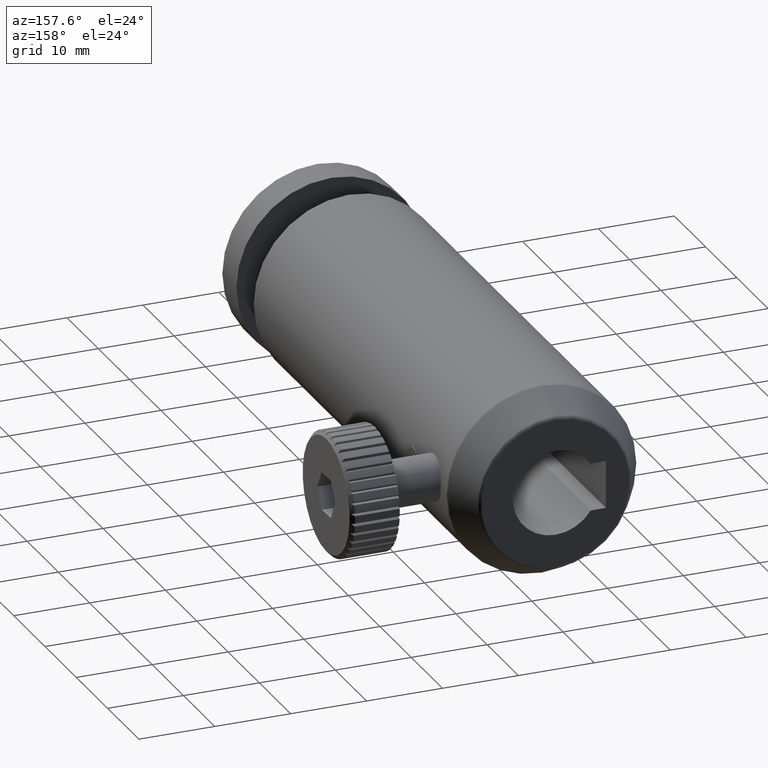
[diagram: clean part render]
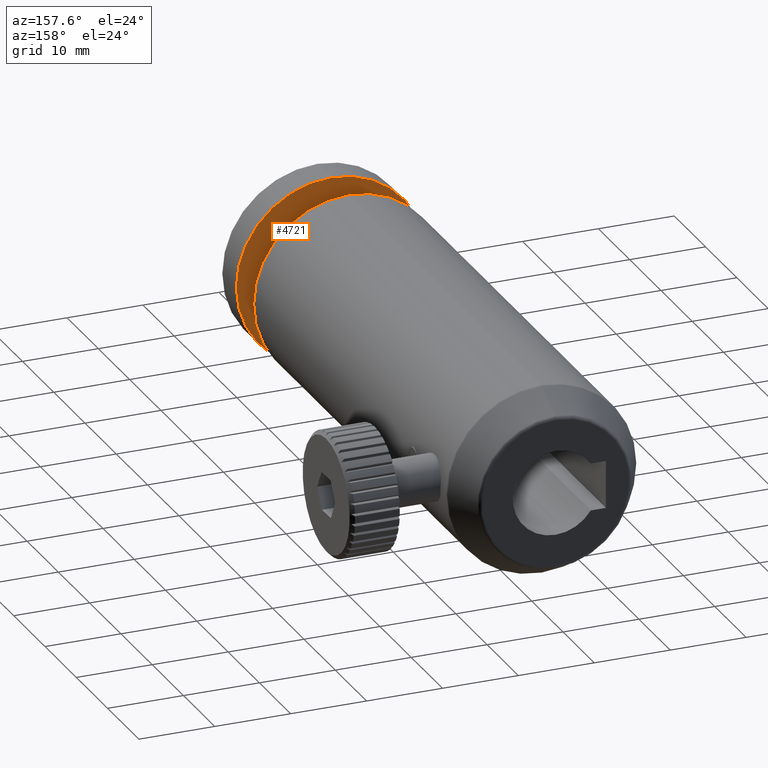
[diagram: same view with one face highlighted and labeled with its STEP entity id]
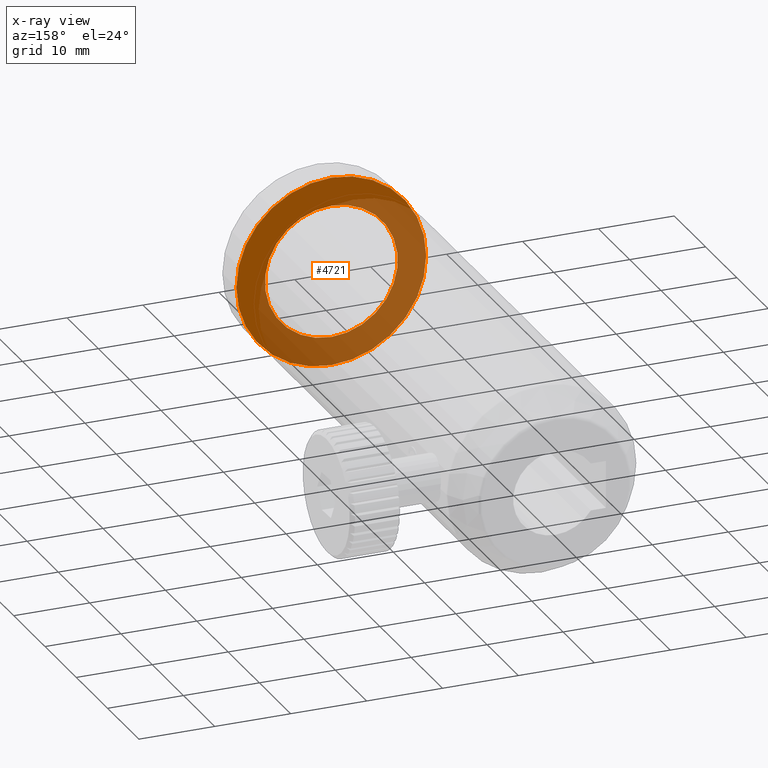
[diagram: x-ray of the same camera — body ghosted, the highlighted face saturated]
A machine part, auxiliary view. The second image highlights one B-rep face of the part: STEP entity #4721.
The next image is the same camera in x-ray: the body ghosted, the highlighted face saturated — about 58% of this face is hidden behind the body in this view.
In plain terms, the highlighted planar face has unit normal (0, -1, -0).
Its self-contained STEP definition (entity closure, byte-faithful):
#176 = ORIENTED_EDGE ( 'NONE', *, *, #4121, .F. ) ;
#234 = ORIENTED_EDGE ( 'NONE', *, *, #2832, .T. ) ;
#694 = EDGE_LOOP ( 'NONE', ( #234, #3707 ) ) ;
#946 = CIRCLE ( 'NONE', #4308, 8.750000000000000000 ) ;
#998 = DIRECTION ( 'NONE',  ( -0.0000000000000000000, -1.000000000000000000, -0.0000000000000000000 ) ) ;
#1065 = AXIS2_PLACEMENT_3D ( 'NONE', #3477, #1856, #3891 ) ;
#1077 = PLANE ( 'NONE',  #2325 ) ;
#1243 = DIRECTION ( 'NONE',  ( 0.0000000000000000000, 0.0000000000000000000, -1.000000000000000000 ) ) ;
#1294 = CARTESIAN_POINT ( 'NONE',  ( -3.194185020997174700, -11.81361205960984000, 0.0000000000000000000 ) ) ;
#1412 = DIRECTION ( 'NONE',  ( 0.0000000000000000000, -1.000000000000000000, -0.0000000000000000000 ) ) ;
#1486 = CARTESIAN_POINT ( 'NONE',  ( -3.194185020997174700, -11.81361205960984000, -12.50000000000000000 ) ) ;
#1509 = CARTESIAN_POINT ( 'NONE',  ( -3.194185020997174700, -11.81361205960984500, -8.750000000000000000 ) ) ;
#1615 = VERTEX_POINT ( 'NONE', #4999 ) ;
#1708 = DIRECTION ( 'NONE',  ( 0.0000000000000000000, 0.0000000000000000000, -1.000000000000000000 ) ) ;
#1718 = CIRCLE ( 'NONE', #4277, 12.50000000000000000 ) ;
#1805 = VERTEX_POINT ( 'NONE', #1486 ) ;
#1856 = DIRECTION ( 'NONE',  ( -0.0000000000000000000, -1.000000000000000000, -0.0000000000000000000 ) ) ;
#1884 = DIRECTION ( 'NONE',  ( 0.0000000000000000000, 0.0000000000000000000, -1.000000000000000000 ) ) ;
#2034 = ORIENTED_EDGE ( 'NONE', *, *, #4381, .F. ) ;
#2036 = CIRCLE ( 'NONE', #4756, 12.50000000000000000 ) ;
#2325 = AXIS2_PLACEMENT_3D ( 'NONE', #3094, #1412, #1884 ) ;
#2832 = EDGE_CURVE ( 'NONE', #3352, #1615, #4930, .T. ) ;
#2924 = DIRECTION ( 'NONE',  ( -0.0000000000000000000, -1.000000000000000000, -0.0000000000000000000 ) ) ;
#2945 = DIRECTION ( 'NONE',  ( -0.0000000000000000000, -1.000000000000000000, -0.0000000000000000000 ) ) ;
#2977 = DIRECTION ( 'NONE',  ( 0.0000000000000000000, 0.0000000000000000000, -1.000000000000000000 ) ) ;
#3094 = CARTESIAN_POINT ( 'NONE',  ( -11.94418502099717600, -11.81361205960984300, 0.0000000000000000000 ) ) ;
#3106 = EDGE_CURVE ( 'NONE', #1615, #3352, #946, .T. ) ;
#3352 = VERTEX_POINT ( 'NONE', #1509 ) ;
#3477 = CARTESIAN_POINT ( 'NONE',  ( -3.194185020997174700, -11.81361205960984500, 0.0000000000000000000 ) ) ;
#3707 = ORIENTED_EDGE ( 'NONE', *, *, #3106, .T. ) ;
#3756 = FACE_OUTER_BOUND ( 'NONE', #4905, .T. ) ;
#3891 = DIRECTION ( 'NONE',  ( 0.0000000000000000000, 0.0000000000000000000, -1.000000000000000000 ) ) ;
#4020 = CARTESIAN_POINT ( 'NONE',  ( -3.194185020997173400, -11.81361205960984000, 12.50000000000000000 ) ) ;
#4121 = EDGE_CURVE ( 'NONE', #4307, #1805, #1718, .T. ) ;
#4277 = AXIS2_PLACEMENT_3D ( 'NONE', #4989, #998, #2977 ) ;
#4307 = VERTEX_POINT ( 'NONE', #4020 ) ;
#4308 = AXIS2_PLACEMENT_3D ( 'NONE', #4497, #2945, #1708 ) ;
#4381 = EDGE_CURVE ( 'NONE', #1805, #4307, #2036, .T. ) ;
#4497 = CARTESIAN_POINT ( 'NONE',  ( -3.194185020997174700, -11.81361205960984500, 0.0000000000000000000 ) ) ;
#4561 = FACE_BOUND ( 'NONE', #694, .T. ) ;
#4721 = ADVANCED_FACE ( 'NONE', ( #3756, #4561 ), #1077, .F. ) ;
#4756 = AXIS2_PLACEMENT_3D ( 'NONE', #1294, #2924, #1243 ) ;
#4905 = EDGE_LOOP ( 'NONE', ( #2034, #176 ) ) ;
#4930 = CIRCLE ( 'NONE', #1065, 8.750000000000000000 ) ;
#4989 = CARTESIAN_POINT ( 'NONE',  ( -3.194185020997174700, -11.81361205960984000, 0.0000000000000000000 ) ) ;
#4999 = CARTESIAN_POINT ( 'NONE',  ( -3.194185020997173800, -11.81361205960984500, 8.750000000000000000 ) ) ;